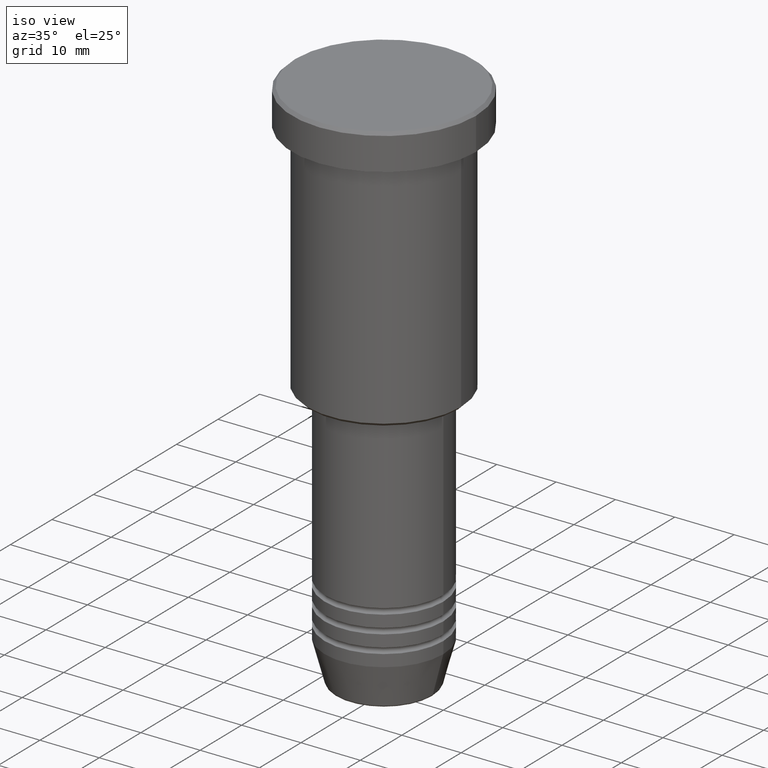
[diagram: clean part render]
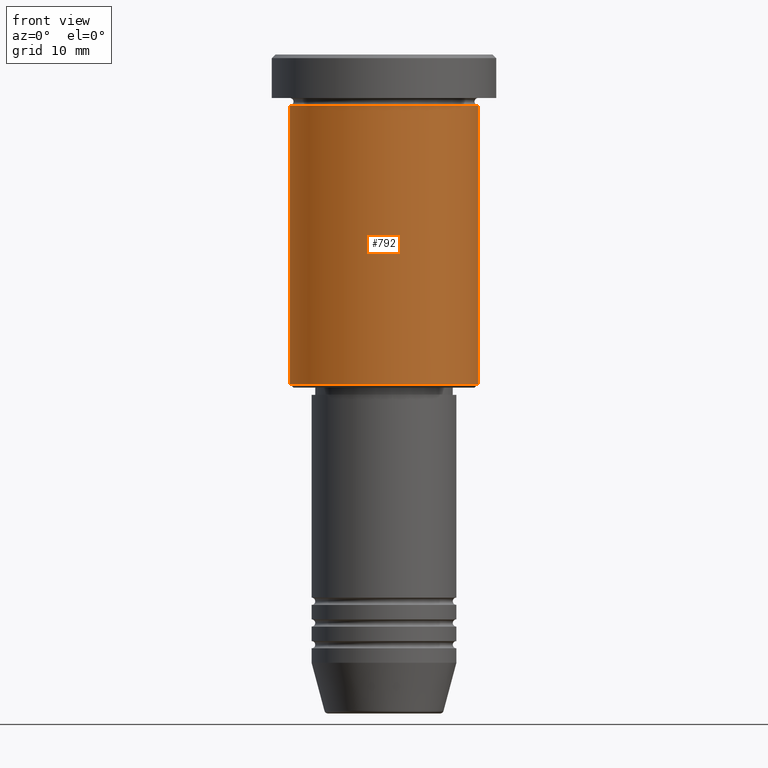
[diagram: tour spotlight — one face highlighted and labeled with its STEP entity id]
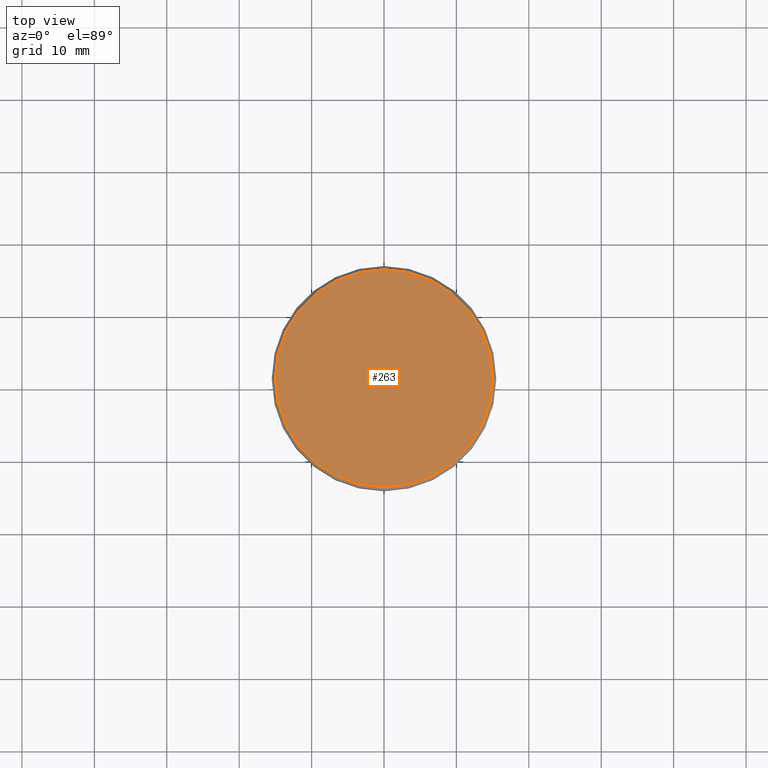
[diagram: tour spotlight — one face highlighted and labeled with its STEP entity id]
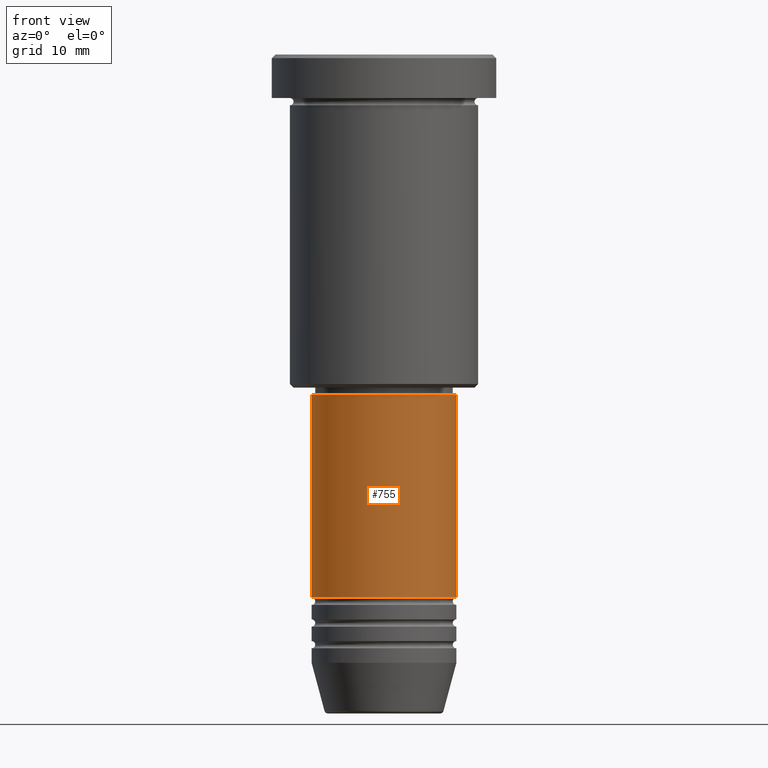
[diagram: tour spotlight — one face highlighted and labeled with its STEP entity id]
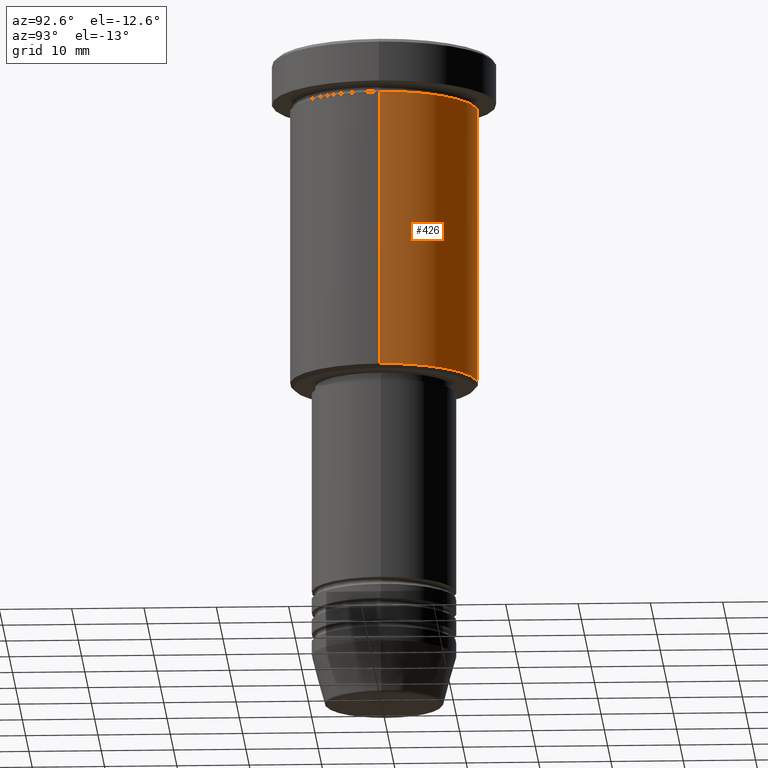
[diagram: tour spotlight — one face highlighted and labeled with its STEP entity id]
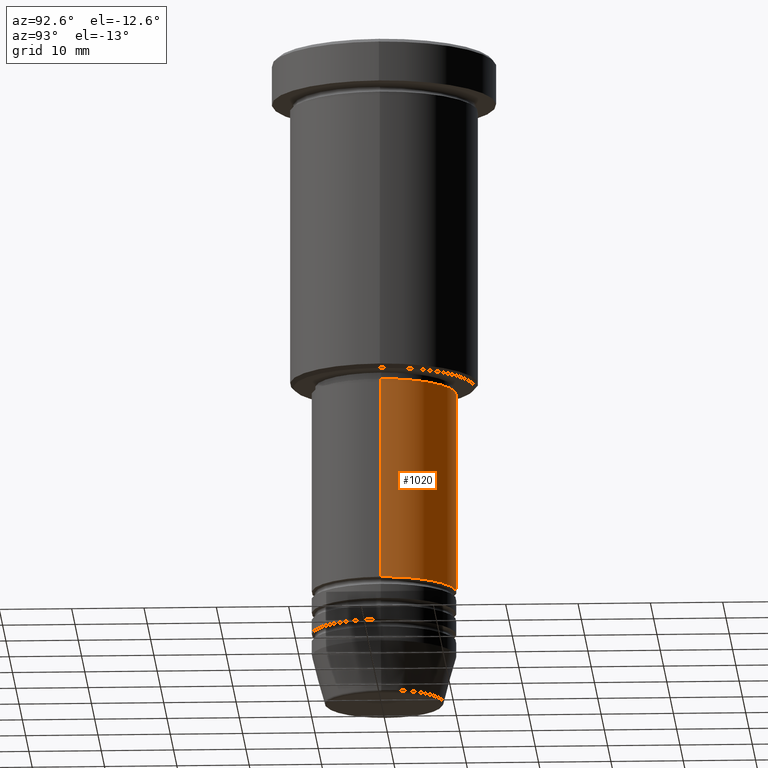
[diagram: tour spotlight — one face highlighted and labeled with its STEP entity id]
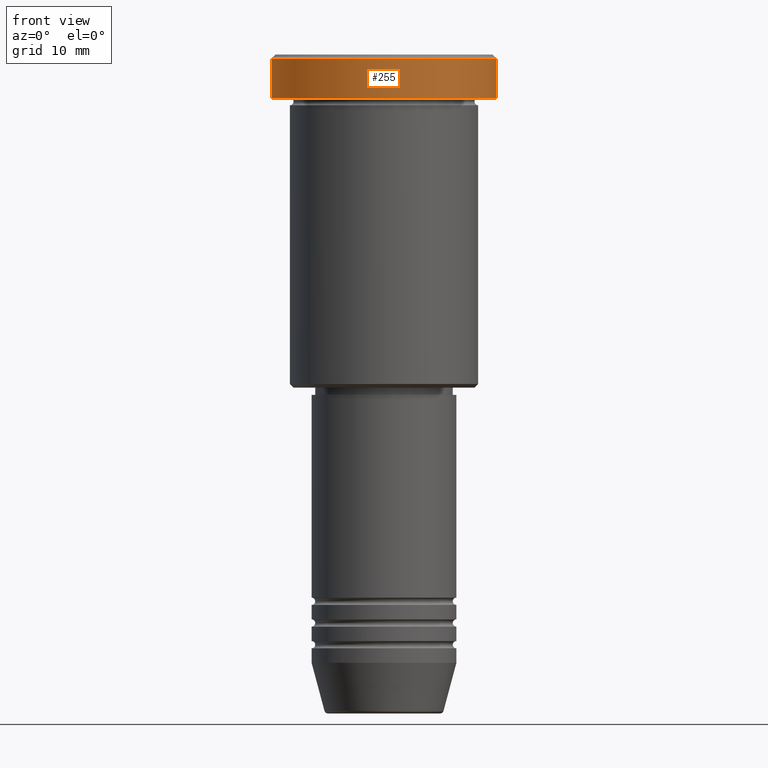
[diagram: tour spotlight — one face highlighted and labeled with its STEP entity id]
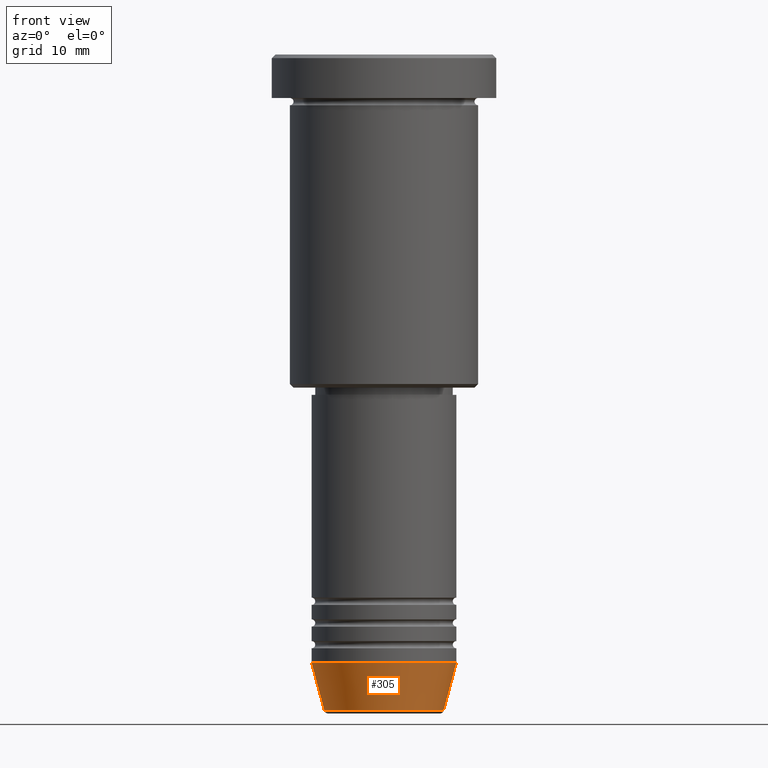
[diagram: tour spotlight — one face highlighted and labeled with its STEP entity id]
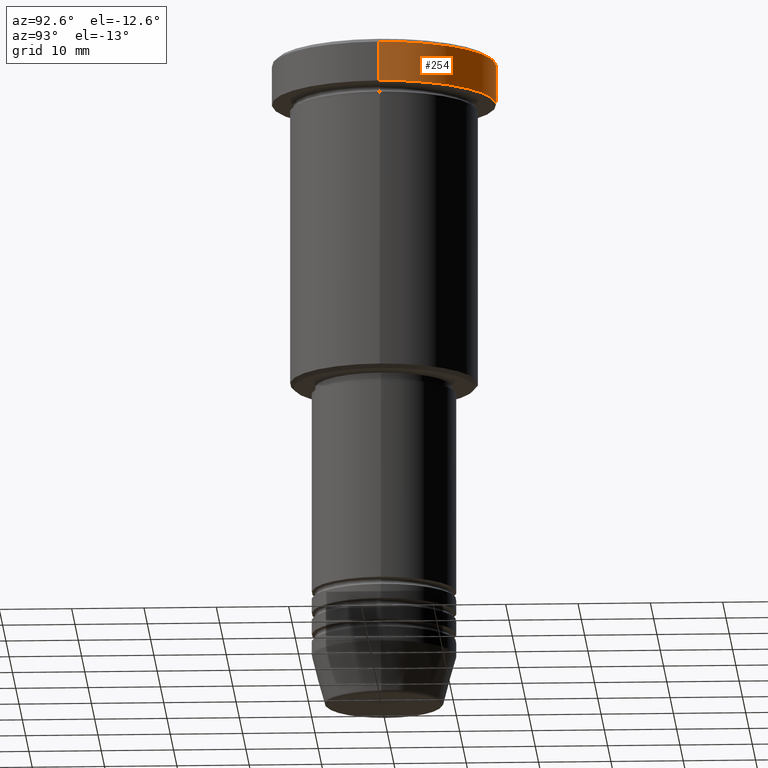
[diagram: tour spotlight — one face highlighted and labeled with its STEP entity id]
A machine part: a face-by-face anatomy tour. The part has 43 B-rep faces; the first image is the clean iso view, then the 8 largest visible faces are spotlighted one at a time (largest first), each with its STEP entity span.

Face 1 — front view, entity #792. In plain terms, the highlighted cylindrical surface (partial cylindrical patch) has radius 13 mm, axis along (-0, -0, 1).
Definition (entity closure, byte-faithful):
#53 = DIRECTION ( 'NONE',  ( -1.000000000000000000, 0.000000000000000000, 0.000000000000000000 ) ) ;
#108 = CARTESIAN_POINT ( 'NONE',  ( 13.00000000000000000, 0.000000000000000000, -6.999999999999995559 ) ) ;
#141 = CARTESIAN_POINT ( 'NONE',  ( -13.00000000000000000, 1.592040838891559095E-15, -6.999999999999995559 ) ) ;
#152 = DIRECTION ( 'NONE',  ( -0.000000000000000000, -0.000000000000000000, 1.000000000000000000 ) ) ;
#218 = DIRECTION ( 'NONE',  ( -0.000000000000000000, -0.000000000000000000, 1.000000000000000000 ) ) ;
#220 = ORIENTED_EDGE ( 'NONE', *, *, #1006, .F. ) ;
#224 = FACE_OUTER_BOUND ( 'NONE', #330, .T. ) ;
#227 = VERTEX_POINT ( 'NONE', #141 ) ;
#284 = LINE ( 'NONE', #650, #390 ) ;
#315 = CARTESIAN_POINT ( 'NONE',  ( 0.000000000000000000, 0.000000000000000000, -45.49999999999998579 ) ) ;
#324 = ORIENTED_EDGE ( 'NONE', *, *, #756, .T. ) ;
#330 = EDGE_LOOP ( 'NONE', ( #791, #324, #1011, #220 ) ) ;
#345 = LINE ( 'NONE', #710, #861 ) ;
#370 = EDGE_CURVE ( 'NONE', #1150, #227, #345, .T. ) ;
#374 = DIRECTION ( 'NONE',  ( -0.000000000000000000, -0.000000000000000000, 1.000000000000000000 ) ) ;
#387 = CIRCLE ( 'NONE', #1057, 13.00000000000000000 ) ;
#390 = VECTOR ( 'NONE', #1004, 1000.000000000000000 ) ;
#419 = DIRECTION ( 'NONE',  ( -0.000000000000000000, -0.000000000000000000, 1.000000000000000000 ) ) ;
#485 = DIRECTION ( 'NONE',  ( 1.000000000000000000, 0.000000000000000000, 0.000000000000000000 ) ) ;
#568 = VERTEX_POINT ( 'NONE', #705 ) ;
#593 = CARTESIAN_POINT ( 'NONE',  ( 0.000000000000000000, 0.000000000000000000, 0.000000000000000000 ) ) ;
#609 = CARTESIAN_POINT ( 'NONE',  ( -13.00000000000000000, 1.592040838891559095E-15, -45.49999999999998579 ) ) ;
#629 = DIRECTION ( 'NONE',  ( 1.000000000000000000, 0.000000000000000000, 0.000000000000000000 ) ) ;
#650 = CARTESIAN_POINT ( 'NONE',  ( 13.00000000000000000, 0.000000000000000000, 0.000000000000000000 ) ) ;
#705 = CARTESIAN_POINT ( 'NONE',  ( 13.00000000000000000, 0.000000000000000000, -45.49999999999998579 ) ) ;
#710 = CARTESIAN_POINT ( 'NONE',  ( -13.00000000000000000, 1.592040838891559095E-15, 0.000000000000000000 ) ) ;
#722 = EDGE_CURVE ( 'NONE', #568, #853, #284, .T. ) ;
#756 = EDGE_CURVE ( 'NONE', #1150, #568, #1096, .T. ) ;
#791 = ORIENTED_EDGE ( 'NONE', *, *, #370, .F. ) ;
#792 = ADVANCED_FACE ( 'NONE', ( #224 ), #865, .T. ) ;
#807 = AXIS2_PLACEMENT_3D ( 'NONE', #315, #218, #53 ) ;
#818 = AXIS2_PLACEMENT_3D ( 'NONE', #593, #419, #485 ) ;
#853 = VERTEX_POINT ( 'NONE', #108 ) ;
#861 = VECTOR ( 'NONE', #152, 1000.000000000000000 ) ;
#865 = CYLINDRICAL_SURFACE ( 'NONE', #818, 13.00000000000000000 ) ;
#1004 = DIRECTION ( 'NONE',  ( -0.000000000000000000, -0.000000000000000000, 1.000000000000000000 ) ) ;
#1006 = EDGE_CURVE ( 'NONE', #227, #853, #387, .T. ) ;
#1011 = ORIENTED_EDGE ( 'NONE', *, *, #722, .T. ) ;
#1057 = AXIS2_PLACEMENT_3D ( 'NONE', #1090, #374, #629 ) ;
#1090 = CARTESIAN_POINT ( 'NONE',  ( 0.000000000000000000, 0.000000000000000000, -6.999999999999995559 ) ) ;
#1096 = CIRCLE ( 'NONE', #807, 13.00000000000000000 ) ;
#1150 = VERTEX_POINT ( 'NONE', #609 ) ;

Face 2 — top view, entity #263. In plain terms, the highlighted planar face has unit normal (0, -0, 1).
Definition (entity closure, byte-faithful):
#23 = CARTESIAN_POINT ( 'NONE',  ( 0.000000000000000000, 0.000000000000000000, 0.000000000000000000 ) ) ;
#31 = AXIS2_PLACEMENT_3D ( 'NONE', #23, #1013, #192 ) ;
#87 = AXIS2_PLACEMENT_3D ( 'NONE', #403, #506, #316 ) ;
#192 = DIRECTION ( 'NONE',  ( 1.000000000000000000, 0.000000000000000000, 0.000000000000000000 ) ) ;
#261 = PLANE ( 'NONE',  #437 ) ;
#263 = ADVANCED_FACE ( 'NONE', ( #697 ), #261, .T. ) ;
#316 = DIRECTION ( 'NONE',  ( 1.000000000000000000, 0.000000000000000000, 0.000000000000000000 ) ) ;
#326 = CIRCLE ( 'NONE', #31, 15.00000000000000000 ) ;
#332 = CARTESIAN_POINT ( 'NONE',  ( -15.00000000000000000, 0.000000000000000000, 0.000000000000000000 ) ) ;
#403 = CARTESIAN_POINT ( 'NONE',  ( 0.000000000000000000, 0.000000000000000000, 0.000000000000000000 ) ) ;
#437 = AXIS2_PLACEMENT_3D ( 'NONE', #544, #977, #1162 ) ;
#458 = ORIENTED_EDGE ( 'NONE', *, *, #476, .T. ) ;
#476 = EDGE_CURVE ( 'NONE', #780, #934, #326, .T. ) ;
#493 = ORIENTED_EDGE ( 'NONE', *, *, #521, .T. ) ;
#506 = DIRECTION ( 'NONE',  ( -0.000000000000000000, -0.000000000000000000, 1.000000000000000000 ) ) ;
#521 = EDGE_CURVE ( 'NONE', #934, #780, #937, .T. ) ;
#544 = CARTESIAN_POINT ( 'NONE',  ( 0.000000000000000000, 0.000000000000000000, 0.000000000000000000 ) ) ;
#697 = FACE_OUTER_BOUND ( 'NONE', #1017, .T. ) ;
#780 = VERTEX_POINT ( 'NONE', #1056 ) ;
#934 = VERTEX_POINT ( 'NONE', #332 ) ;
#937 = CIRCLE ( 'NONE', #87, 15.00000000000000000 ) ;
#977 = DIRECTION ( 'NONE',  ( 0.000000000000000000, -0.000000000000000000, 1.000000000000000000 ) ) ;
#1013 = DIRECTION ( 'NONE',  ( -0.000000000000000000, -0.000000000000000000, 1.000000000000000000 ) ) ;
#1017 = EDGE_LOOP ( 'NONE', ( #493, #458 ) ) ;
#1056 = CARTESIAN_POINT ( 'NONE',  ( 15.00000000000000000, 1.867586368699713376E-15, 0.000000000000000000 ) ) ;
#1162 = DIRECTION ( 'NONE',  ( 1.000000000000000000, 0.000000000000000000, 0.000000000000000000 ) ) ;

Face 3 — front view, entity #755. In plain terms, the highlighted cylindrical surface (partial cylindrical patch) has radius 10 mm, axis along (-0, -0, 1).
Definition (entity closure, byte-faithful):
#4 = CARTESIAN_POINT ( 'NONE',  ( 10.00000000000000000, 0.000000000000000000, -46.99999999999997158 ) ) ;
#11 = DIRECTION ( 'NONE',  ( -0.000000000000000000, -0.000000000000000000, 1.000000000000000000 ) ) ;
#64 = CARTESIAN_POINT ( 'NONE',  ( 10.00000000000000000, 0.000000000000000000, -74.99999999999997158 ) ) ;
#169 = EDGE_LOOP ( 'NONE', ( #1180, #703, #654, #585 ) ) ;
#171 = DIRECTION ( 'NONE',  ( 1.000000000000000000, 0.000000000000000000, 0.000000000000000000 ) ) ;
#187 = DIRECTION ( 'NONE',  ( 1.000000000000000000, 0.000000000000000000, 0.000000000000000000 ) ) ;
#216 = CIRCLE ( 'NONE', #1019, 10.00000000000000000 ) ;
#241 = DIRECTION ( 'NONE',  ( -0.000000000000000000, -0.000000000000000000, 1.000000000000000000 ) ) ;
#265 = CARTESIAN_POINT ( 'NONE',  ( -10.00000000000000000, 1.224646799147353256E-15, -46.99999999999997158 ) ) ;
#312 = EDGE_CURVE ( 'NONE', #1043, #432, #707, .T. ) ;
#386 = CARTESIAN_POINT ( 'NONE',  ( 0.000000000000000000, 0.000000000000000000, 0.000000000000000000 ) ) ;
#414 = EDGE_CURVE ( 'NONE', #695, #1043, #938, .T. ) ;
#432 = VERTEX_POINT ( 'NONE', #4 ) ;
#456 = DIRECTION ( 'NONE',  ( -0.000000000000000000, -0.000000000000000000, 1.000000000000000000 ) ) ;
#462 = EDGE_CURVE ( 'NONE', #1026, #432, #216, .T. ) ;
#480 = CYLINDRICAL_SURFACE ( 'NONE', #693, 10.00000000000000000 ) ;
#576 = VECTOR ( 'NONE', #241, 1000.000000000000000 ) ;
#585 = ORIENTED_EDGE ( 'NONE', *, *, #462, .F. ) ;
#654 = ORIENTED_EDGE ( 'NONE', *, *, #312, .T. ) ;
#658 = FACE_OUTER_BOUND ( 'NONE', #169, .T. ) ;
#693 = AXIS2_PLACEMENT_3D ( 'NONE', #386, #1125, #767 ) ;
#695 = VERTEX_POINT ( 'NONE', #1067 ) ;
#703 = ORIENTED_EDGE ( 'NONE', *, *, #414, .T. ) ;
#707 = LINE ( 'NONE', #876, #750 ) ;
#750 = VECTOR ( 'NONE', #1074, 1000.000000000000000 ) ;
#755 = ADVANCED_FACE ( 'NONE', ( #658 ), #480, .T. ) ;
#766 = EDGE_CURVE ( 'NONE', #695, #1026, #1140, .T. ) ;
#767 = DIRECTION ( 'NONE',  ( 1.000000000000000000, 0.000000000000000000, 0.000000000000000000 ) ) ;
#774 = CARTESIAN_POINT ( 'NONE',  ( -10.00000000000000000, 1.224646799147353256E-15, 0.000000000000000000 ) ) ;
#833 = CARTESIAN_POINT ( 'NONE',  ( 0.000000000000000000, 0.000000000000000000, -46.99999999999997158 ) ) ;
#876 = CARTESIAN_POINT ( 'NONE',  ( 10.00000000000000000, 0.000000000000000000, 0.000000000000000000 ) ) ;
#938 = CIRCLE ( 'NONE', #1161, 10.00000000000000000 ) ;
#1019 = AXIS2_PLACEMENT_3D ( 'NONE', #833, #456, #171 ) ;
#1026 = VERTEX_POINT ( 'NONE', #265 ) ;
#1043 = VERTEX_POINT ( 'NONE', #64 ) ;
#1060 = CARTESIAN_POINT ( 'NONE',  ( 0.000000000000000000, 0.000000000000000000, -74.99999999999997158 ) ) ;
#1067 = CARTESIAN_POINT ( 'NONE',  ( -10.00000000000000000, 1.224646799147353256E-15, -74.99999999999997158 ) ) ;
#1074 = DIRECTION ( 'NONE',  ( -0.000000000000000000, -0.000000000000000000, 1.000000000000000000 ) ) ;
#1125 = DIRECTION ( 'NONE',  ( -0.000000000000000000, -0.000000000000000000, 1.000000000000000000 ) ) ;
#1140 = LINE ( 'NONE', #774, #576 ) ;
#1161 = AXIS2_PLACEMENT_3D ( 'NONE', #1060, #11, #187 ) ;
#1180 = ORIENTED_EDGE ( 'NONE', *, *, #766, .F. ) ;

Face 4 — auxiliary view, entity #426. In plain terms, the highlighted cylindrical surface (partial cylindrical patch) has radius 13 mm, axis along (-0, -0, 1).
Definition (entity closure, byte-faithful):
#3 = DIRECTION ( 'NONE',  ( -1.000000000000000000, 0.000000000000000000, 0.000000000000000000 ) ) ;
#18 = CARTESIAN_POINT ( 'NONE',  ( 0.000000000000000000, 0.000000000000000000, -45.49999999999998579 ) ) ;
#21 = ORIENTED_EDGE ( 'NONE', *, *, #722, .F. ) ;
#73 = EDGE_LOOP ( 'NONE', ( #418, #757, #107, #21 ) ) ;
#99 = CIRCLE ( 'NONE', #842, 13.00000000000000000 ) ;
#107 = ORIENTED_EDGE ( 'NONE', *, *, #798, .F. ) ;
#108 = CARTESIAN_POINT ( 'NONE',  ( 13.00000000000000000, 0.000000000000000000, -6.999999999999995559 ) ) ;
#141 = CARTESIAN_POINT ( 'NONE',  ( -13.00000000000000000, 1.592040838891559095E-15, -6.999999999999995559 ) ) ;
#152 = DIRECTION ( 'NONE',  ( -0.000000000000000000, -0.000000000000000000, 1.000000000000000000 ) ) ;
#227 = VERTEX_POINT ( 'NONE', #141 ) ;
#280 = AXIS2_PLACEMENT_3D ( 'NONE', #914, #556, #903 ) ;
#284 = LINE ( 'NONE', #650, #390 ) ;
#298 = AXIS2_PLACEMENT_3D ( 'NONE', #1151, #334, #844 ) ;
#334 = DIRECTION ( 'NONE',  ( -0.000000000000000000, -0.000000000000000000, 1.000000000000000000 ) ) ;
#345 = LINE ( 'NONE', #710, #861 ) ;
#370 = EDGE_CURVE ( 'NONE', #1150, #227, #345, .T. ) ;
#377 = DIRECTION ( 'NONE',  ( -0.000000000000000000, -0.000000000000000000, 1.000000000000000000 ) ) ;
#390 = VECTOR ( 'NONE', #1004, 1000.000000000000000 ) ;
#418 = ORIENTED_EDGE ( 'NONE', *, *, #870, .T. ) ;
#426 = ADVANCED_FACE ( 'NONE', ( #896 ), #558, .T. ) ;
#556 = DIRECTION ( 'NONE',  ( -0.000000000000000000, -0.000000000000000000, 1.000000000000000000 ) ) ;
#558 = CYLINDRICAL_SURFACE ( 'NONE', #280, 13.00000000000000000 ) ;
#568 = VERTEX_POINT ( 'NONE', #705 ) ;
#609 = CARTESIAN_POINT ( 'NONE',  ( -13.00000000000000000, 1.592040838891559095E-15, -45.49999999999998579 ) ) ;
#650 = CARTESIAN_POINT ( 'NONE',  ( 13.00000000000000000, 0.000000000000000000, 0.000000000000000000 ) ) ;
#705 = CARTESIAN_POINT ( 'NONE',  ( 13.00000000000000000, 0.000000000000000000, -45.49999999999998579 ) ) ;
#710 = CARTESIAN_POINT ( 'NONE',  ( -13.00000000000000000, 1.592040838891559095E-15, 0.000000000000000000 ) ) ;
#722 = EDGE_CURVE ( 'NONE', #568, #853, #284, .T. ) ;
#757 = ORIENTED_EDGE ( 'NONE', *, *, #370, .T. ) ;
#798 = EDGE_CURVE ( 'NONE', #853, #227, #881, .T. ) ;
#842 = AXIS2_PLACEMENT_3D ( 'NONE', #18, #377, #3 ) ;
#844 = DIRECTION ( 'NONE',  ( 1.000000000000000000, 0.000000000000000000, 0.000000000000000000 ) ) ;
#853 = VERTEX_POINT ( 'NONE', #108 ) ;
#861 = VECTOR ( 'NONE', #152, 1000.000000000000000 ) ;
#870 = EDGE_CURVE ( 'NONE', #568, #1150, #99, .T. ) ;
#881 = CIRCLE ( 'NONE', #298, 13.00000000000000000 ) ;
#896 = FACE_OUTER_BOUND ( 'NONE', #73, .T. ) ;
#903 = DIRECTION ( 'NONE',  ( 1.000000000000000000, 0.000000000000000000, 0.000000000000000000 ) ) ;
#914 = CARTESIAN_POINT ( 'NONE',  ( 0.000000000000000000, 0.000000000000000000, 0.000000000000000000 ) ) ;
#1004 = DIRECTION ( 'NONE',  ( -0.000000000000000000, -0.000000000000000000, 1.000000000000000000 ) ) ;
#1150 = VERTEX_POINT ( 'NONE', #609 ) ;
#1151 = CARTESIAN_POINT ( 'NONE',  ( 0.000000000000000000, 0.000000000000000000, -6.999999999999995559 ) ) ;

Face 5 — auxiliary view, entity #1020. In plain terms, the highlighted cylindrical surface (partial cylindrical patch) has radius 10 mm, axis along (-0, -0, 1).
Definition (entity closure, byte-faithful):
#4 = CARTESIAN_POINT ( 'NONE',  ( 10.00000000000000000, 0.000000000000000000, -46.99999999999997158 ) ) ;
#64 = CARTESIAN_POINT ( 'NONE',  ( 10.00000000000000000, 0.000000000000000000, -74.99999999999997158 ) ) ;
#86 = CIRCLE ( 'NONE', #973, 10.00000000000000000 ) ;
#190 = EDGE_LOOP ( 'NONE', ( #588, #508, #598, #608 ) ) ;
#212 = EDGE_CURVE ( 'NONE', #432, #1026, #619, .T. ) ;
#241 = DIRECTION ( 'NONE',  ( -0.000000000000000000, -0.000000000000000000, 1.000000000000000000 ) ) ;
#265 = CARTESIAN_POINT ( 'NONE',  ( -10.00000000000000000, 1.224646799147353256E-15, -46.99999999999997158 ) ) ;
#294 = CARTESIAN_POINT ( 'NONE',  ( 0.000000000000000000, 0.000000000000000000, -74.99999999999997158 ) ) ;
#312 = EDGE_CURVE ( 'NONE', #1043, #432, #707, .T. ) ;
#382 = CYLINDRICAL_SURFACE ( 'NONE', #562, 10.00000000000000000 ) ;
#411 = AXIS2_PLACEMENT_3D ( 'NONE', #939, #1126, #1050 ) ;
#432 = VERTEX_POINT ( 'NONE', #4 ) ;
#508 = ORIENTED_EDGE ( 'NONE', *, *, #766, .T. ) ;
#562 = AXIS2_PLACEMENT_3D ( 'NONE', #743, #811, #1086 ) ;
#576 = VECTOR ( 'NONE', #241, 1000.000000000000000 ) ;
#588 = ORIENTED_EDGE ( 'NONE', *, *, #950, .T. ) ;
#598 = ORIENTED_EDGE ( 'NONE', *, *, #212, .F. ) ;
#608 = ORIENTED_EDGE ( 'NONE', *, *, #312, .F. ) ;
#619 = CIRCLE ( 'NONE', #411, 10.00000000000000000 ) ;
#647 = FACE_OUTER_BOUND ( 'NONE', #190, .T. ) ;
#695 = VERTEX_POINT ( 'NONE', #1067 ) ;
#707 = LINE ( 'NONE', #876, #750 ) ;
#743 = CARTESIAN_POINT ( 'NONE',  ( 0.000000000000000000, 0.000000000000000000, 0.000000000000000000 ) ) ;
#750 = VECTOR ( 'NONE', #1074, 1000.000000000000000 ) ;
#766 = EDGE_CURVE ( 'NONE', #695, #1026, #1140, .T. ) ;
#774 = CARTESIAN_POINT ( 'NONE',  ( -10.00000000000000000, 1.224646799147353256E-15, 0.000000000000000000 ) ) ;
#811 = DIRECTION ( 'NONE',  ( -0.000000000000000000, -0.000000000000000000, 1.000000000000000000 ) ) ;
#876 = CARTESIAN_POINT ( 'NONE',  ( 10.00000000000000000, 0.000000000000000000, 0.000000000000000000 ) ) ;
#939 = CARTESIAN_POINT ( 'NONE',  ( 0.000000000000000000, 0.000000000000000000, -46.99999999999997158 ) ) ;
#950 = EDGE_CURVE ( 'NONE', #1043, #695, #86, .T. ) ;
#973 = AXIS2_PLACEMENT_3D ( 'NONE', #294, #1016, #1183 ) ;
#1016 = DIRECTION ( 'NONE',  ( -0.000000000000000000, -0.000000000000000000, 1.000000000000000000 ) ) ;
#1020 = ADVANCED_FACE ( 'NONE', ( #647 ), #382, .T. ) ;
#1026 = VERTEX_POINT ( 'NONE', #265 ) ;
#1043 = VERTEX_POINT ( 'NONE', #64 ) ;
#1050 = DIRECTION ( 'NONE',  ( 1.000000000000000000, 0.000000000000000000, 0.000000000000000000 ) ) ;
#1067 = CARTESIAN_POINT ( 'NONE',  ( -10.00000000000000000, 1.224646799147353256E-15, -74.99999999999997158 ) ) ;
#1074 = DIRECTION ( 'NONE',  ( -0.000000000000000000, -0.000000000000000000, 1.000000000000000000 ) ) ;
#1086 = DIRECTION ( 'NONE',  ( 1.000000000000000000, 0.000000000000000000, 0.000000000000000000 ) ) ;
#1126 = DIRECTION ( 'NONE',  ( -0.000000000000000000, -0.000000000000000000, 1.000000000000000000 ) ) ;
#1140 = LINE ( 'NONE', #774, #576 ) ;
#1183 = DIRECTION ( 'NONE',  ( 1.000000000000000000, 0.000000000000000000, 0.000000000000000000 ) ) ;

Face 6 — front view, entity #255. In plain terms, the highlighted cylindrical surface (partial cylindrical patch) has radius 15.5 mm, axis along (-0, -0, 1).
Definition (entity closure, byte-faithful):
#62 = EDGE_LOOP ( 'NONE', ( #1062, #350, #1149, #271 ) ) ;
#95 = EDGE_CURVE ( 'NONE', #375, #117, #247, .T. ) ;
#117 = VERTEX_POINT ( 'NONE', #819 ) ;
#126 = VECTOR ( 'NONE', #799, 1000.000000000000000 ) ;
#140 = VERTEX_POINT ( 'NONE', #1028 ) ;
#210 = CARTESIAN_POINT ( 'NONE',  ( -15.50000000000000000, 1.898202538678397557E-15, 0.000000000000000000 ) ) ;
#222 = CYLINDRICAL_SURFACE ( 'NONE', #790, 15.50000000000000000 ) ;
#232 = CARTESIAN_POINT ( 'NONE',  ( -15.50000000000000000, 1.898202538678397557E-15, -5.999999999999995559 ) ) ;
#247 = CIRCLE ( 'NONE', #303, 15.50000000000000000 ) ;
#253 = DIRECTION ( 'NONE',  ( -0.000000000000000000, -0.000000000000000000, 1.000000000000000000 ) ) ;
#255 = ADVANCED_FACE ( 'NONE', ( #1134 ), #222, .T. ) ;
#257 = DIRECTION ( 'NONE',  ( 0.000000000000000000, 0.000000000000000000, -1.000000000000000000 ) ) ;
#271 = ORIENTED_EDGE ( 'NONE', *, *, #95, .T. ) ;
#275 = EDGE_CURVE ( 'NONE', #674, #140, #1080, .T. ) ;
#303 = AXIS2_PLACEMENT_3D ( 'NONE', #1108, #257, #980 ) ;
#317 = LINE ( 'NONE', #405, #126 ) ;
#350 = ORIENTED_EDGE ( 'NONE', *, *, #275, .T. ) ;
#375 = VERTEX_POINT ( 'NONE', #520 ) ;
#405 = CARTESIAN_POINT ( 'NONE',  ( 15.50000000000000000, 0.000000000000000000, 0.000000000000000000 ) ) ;
#520 = CARTESIAN_POINT ( 'NONE',  ( 15.50000000000000000, 0.000000000000000000, -0.4999999999999987232 ) ) ;
#582 = AXIS2_PLACEMENT_3D ( 'NONE', #1170, #253, #785 ) ;
#591 = CARTESIAN_POINT ( 'NONE',  ( 0.000000000000000000, 0.000000000000000000, 0.000000000000000000 ) ) ;
#674 = VERTEX_POINT ( 'NONE', #232 ) ;
#687 = EDGE_CURVE ( 'NONE', #674, #117, #964, .T. ) ;
#691 = EDGE_CURVE ( 'NONE', #140, #375, #317, .T. ) ;
#785 = DIRECTION ( 'NONE',  ( 1.000000000000000000, 0.000000000000000000, 0.000000000000000000 ) ) ;
#790 = AXIS2_PLACEMENT_3D ( 'NONE', #591, #942, #854 ) ;
#799 = DIRECTION ( 'NONE',  ( -0.000000000000000000, -0.000000000000000000, 1.000000000000000000 ) ) ;
#819 = CARTESIAN_POINT ( 'NONE',  ( -15.50000000000000000, 1.898202538678397557E-15, -0.4999999999999987232 ) ) ;
#854 = DIRECTION ( 'NONE',  ( 1.000000000000000000, 0.000000000000000000, 0.000000000000000000 ) ) ;
#942 = DIRECTION ( 'NONE',  ( -0.000000000000000000, -0.000000000000000000, 1.000000000000000000 ) ) ;
#953 = DIRECTION ( 'NONE',  ( -0.000000000000000000, -0.000000000000000000, 1.000000000000000000 ) ) ;
#964 = LINE ( 'NONE', #210, #1102 ) ;
#980 = DIRECTION ( 'NONE',  ( 1.000000000000000000, 0.000000000000000000, 0.000000000000000000 ) ) ;
#1028 = CARTESIAN_POINT ( 'NONE',  ( 15.50000000000000000, 0.000000000000000000, -5.999999999999995559 ) ) ;
#1062 = ORIENTED_EDGE ( 'NONE', *, *, #687, .F. ) ;
#1080 = CIRCLE ( 'NONE', #582, 15.50000000000000000 ) ;
#1102 = VECTOR ( 'NONE', #953, 1000.000000000000000 ) ;
#1108 = CARTESIAN_POINT ( 'NONE',  ( 0.000000000000000000, 0.000000000000000000, -0.4999999999999987232 ) ) ;
#1134 = FACE_OUTER_BOUND ( 'NONE', #62, .T. ) ;
#1149 = ORIENTED_EDGE ( 'NONE', *, *, #691, .T. ) ;
#1170 = CARTESIAN_POINT ( 'NONE',  ( 0.000000000000000000, 0.000000000000000000, -5.999999999999995559 ) ) ;

Face 7 — front view, entity #305. In plain terms, the highlighted conical surface has half-angle 15 deg.
Definition (entity closure, byte-faithful):
#72 = AXIS2_PLACEMENT_3D ( 'NONE', #599, #607, #1046 ) ;
#77 = VERTEX_POINT ( 'NONE', #299 ) ;
#168 = DIRECTION ( 'NONE',  ( -0.000000000000000000, -0.000000000000000000, 1.000000000000000000 ) ) ;
#209 = DIRECTION ( 'NONE',  ( 0.2588190451025213501, 0.000000000000000000, 0.9659258262890680902 ) ) ;
#248 = FACE_OUTER_BOUND ( 'NONE', #614, .T. ) ;
#291 = DIRECTION ( 'NONE',  ( -0.000000000000000000, -0.000000000000000000, 1.000000000000000000 ) ) ;
#299 = CARTESIAN_POINT ( 'NONE',  ( -10.00000000000000000, 1.224646799147353256E-15, -83.99999999999998579 ) ) ;
#305 = ADVANCED_FACE ( 'NONE', ( #248 ), #622, .T. ) ;
#311 = LINE ( 'NONE', #569, #1038 ) ;
#367 = VERTEX_POINT ( 'NONE', #1163 ) ;
#372 = CIRCLE ( 'NONE', #72, 10.00000000000000000 ) ;
#431 = CIRCLE ( 'NONE', #975, 8.223655072137187716 ) ;
#522 = ORIENTED_EDGE ( 'NONE', *, *, #778, .F. ) ;
#536 = CARTESIAN_POINT ( 'NONE',  ( 0.000000000000000000, 0.000000000000000000, -83.99999999999998579 ) ) ;
#552 = EDGE_CURVE ( 'NONE', #1048, #367, #311, .T. ) ;
#565 = AXIS2_PLACEMENT_3D ( 'NONE', #536, #168, #888 ) ;
#569 = CARTESIAN_POINT ( 'NONE',  ( 10.00000000000000000, 0.000000000000000000, -83.99999999999998579 ) ) ;
#599 = CARTESIAN_POINT ( 'NONE',  ( 0.000000000000000000, 0.000000000000000000, -83.99999999999998579 ) ) ;
#603 = DIRECTION ( 'NONE',  ( -0.2588190451025213501, 3.169619151431772337E-17, 0.9659258262890680902 ) ) ;
#607 = DIRECTION ( 'NONE',  ( -0.000000000000000000, -0.000000000000000000, 1.000000000000000000 ) ) ;
#610 = ORIENTED_EDGE ( 'NONE', *, *, #868, .T. ) ;
#614 = EDGE_LOOP ( 'NONE', ( #765, #610, #899, #522 ) ) ;
#622 = CONICAL_SURFACE ( 'NONE', #565, 10.00000000000000000, 0.2617993877991500740 ) ;
#765 = ORIENTED_EDGE ( 'NONE', *, *, #1148, .F. ) ;
#778 = EDGE_CURVE ( 'NONE', #77, #367, #372, .T. ) ;
#813 = CARTESIAN_POINT ( 'NONE',  ( 0.000000000000000000, 0.000000000000000000, -90.62940952255125637 ) ) ;
#822 = VECTOR ( 'NONE', #603, 1000.000000000000000 ) ;
#862 = CARTESIAN_POINT ( 'NONE',  ( -10.00000000000000000, 1.224646799147353256E-15, -83.99999999999998579 ) ) ;
#868 = EDGE_CURVE ( 'NONE', #1039, #1048, #431, .T. ) ;
#888 = DIRECTION ( 'NONE',  ( 1.000000000000000000, 0.000000000000000000, 0.000000000000000000 ) ) ;
#899 = ORIENTED_EDGE ( 'NONE', *, *, #552, .T. ) ;
#949 = CARTESIAN_POINT ( 'NONE',  ( 8.223655072137187716, 0.000000000000000000, -90.62940952255125637 ) ) ;
#975 = AXIS2_PLACEMENT_3D ( 'NONE', #813, #291, #1012 ) ;
#988 = CARTESIAN_POINT ( 'NONE',  ( -8.223655072137187716, 1.115877042642911856E-15, -90.62940952255125637 ) ) ;
#1012 = DIRECTION ( 'NONE',  ( 1.000000000000000000, 0.000000000000000000, 0.000000000000000000 ) ) ;
#1038 = VECTOR ( 'NONE', #209, 1000.000000000000000 ) ;
#1039 = VERTEX_POINT ( 'NONE', #988 ) ;
#1046 = DIRECTION ( 'NONE',  ( 1.000000000000000000, 0.000000000000000000, 0.000000000000000000 ) ) ;
#1048 = VERTEX_POINT ( 'NONE', #949 ) ;
#1132 = LINE ( 'NONE', #862, #822 ) ;
#1148 = EDGE_CURVE ( 'NONE', #1039, #77, #1132, .T. ) ;
#1163 = CARTESIAN_POINT ( 'NONE',  ( 10.00000000000000000, 0.000000000000000000, -83.99999999999998579 ) ) ;

Face 8 — auxiliary view, entity #254. In plain terms, the highlighted cylindrical surface (partial cylindrical patch) has radius 15.5 mm, axis along (-0, -0, 1).
Definition (entity closure, byte-faithful):
#20 = DIRECTION ( 'NONE',  ( 1.000000000000000000, 0.000000000000000000, 0.000000000000000000 ) ) ;
#37 = EDGE_CURVE ( 'NONE', #117, #375, #979, .T. ) ;
#46 = DIRECTION ( 'NONE',  ( -0.000000000000000000, -0.000000000000000000, 1.000000000000000000 ) ) ;
#63 = ORIENTED_EDGE ( 'NONE', *, *, #655, .T. ) ;
#93 = ORIENTED_EDGE ( 'NONE', *, *, #691, .F. ) ;
#101 = ORIENTED_EDGE ( 'NONE', *, *, #687, .T. ) ;
#117 = VERTEX_POINT ( 'NONE', #819 ) ;
#122 = DIRECTION ( 'NONE',  ( 1.000000000000000000, 0.000000000000000000, 0.000000000000000000 ) ) ;
#126 = VECTOR ( 'NONE', #799, 1000.000000000000000 ) ;
#140 = VERTEX_POINT ( 'NONE', #1028 ) ;
#194 = CARTESIAN_POINT ( 'NONE',  ( 0.000000000000000000, 0.000000000000000000, -0.4999999999999987232 ) ) ;
#210 = CARTESIAN_POINT ( 'NONE',  ( -15.50000000000000000, 1.898202538678397557E-15, 0.000000000000000000 ) ) ;
#214 = FACE_OUTER_BOUND ( 'NONE', #424, .T. ) ;
#232 = CARTESIAN_POINT ( 'NONE',  ( -15.50000000000000000, 1.898202538678397557E-15, -5.999999999999995559 ) ) ;
#254 = ADVANCED_FACE ( 'NONE', ( #214 ), #496, .T. ) ;
#317 = LINE ( 'NONE', #405, #126 ) ;
#341 = AXIS2_PLACEMENT_3D ( 'NONE', #848, #46, #400 ) ;
#375 = VERTEX_POINT ( 'NONE', #520 ) ;
#400 = DIRECTION ( 'NONE',  ( 1.000000000000000000, 0.000000000000000000, 0.000000000000000000 ) ) ;
#405 = CARTESIAN_POINT ( 'NONE',  ( 15.50000000000000000, 0.000000000000000000, 0.000000000000000000 ) ) ;
#424 = EDGE_LOOP ( 'NONE', ( #63, #101, #882, #93 ) ) ;
#496 = CYLINDRICAL_SURFACE ( 'NONE', #341, 15.50000000000000000 ) ;
#520 = CARTESIAN_POINT ( 'NONE',  ( 15.50000000000000000, 0.000000000000000000, -0.4999999999999987232 ) ) ;
#605 = CIRCLE ( 'NONE', #635, 15.50000000000000000 ) ;
#635 = AXIS2_PLACEMENT_3D ( 'NONE', #933, #764, #122 ) ;
#655 = EDGE_CURVE ( 'NONE', #140, #674, #605, .T. ) ;
#674 = VERTEX_POINT ( 'NONE', #232 ) ;
#687 = EDGE_CURVE ( 'NONE', #674, #117, #964, .T. ) ;
#691 = EDGE_CURVE ( 'NONE', #140, #375, #317, .T. ) ;
#754 = AXIS2_PLACEMENT_3D ( 'NONE', #194, #1172, #20 ) ;
#764 = DIRECTION ( 'NONE',  ( -0.000000000000000000, -0.000000000000000000, 1.000000000000000000 ) ) ;
#799 = DIRECTION ( 'NONE',  ( -0.000000000000000000, -0.000000000000000000, 1.000000000000000000 ) ) ;
#819 = CARTESIAN_POINT ( 'NONE',  ( -15.50000000000000000, 1.898202538678397557E-15, -0.4999999999999987232 ) ) ;
#848 = CARTESIAN_POINT ( 'NONE',  ( 0.000000000000000000, 0.000000000000000000, 0.000000000000000000 ) ) ;
#882 = ORIENTED_EDGE ( 'NONE', *, *, #37, .T. ) ;
#933 = CARTESIAN_POINT ( 'NONE',  ( 0.000000000000000000, 0.000000000000000000, -5.999999999999995559 ) ) ;
#953 = DIRECTION ( 'NONE',  ( -0.000000000000000000, -0.000000000000000000, 1.000000000000000000 ) ) ;
#964 = LINE ( 'NONE', #210, #1102 ) ;
#979 = CIRCLE ( 'NONE', #754, 15.50000000000000000 ) ;
#1028 = CARTESIAN_POINT ( 'NONE',  ( 15.50000000000000000, 0.000000000000000000, -5.999999999999995559 ) ) ;
#1102 = VECTOR ( 'NONE', #953, 1000.000000000000000 ) ;
#1172 = DIRECTION ( 'NONE',  ( 0.000000000000000000, 0.000000000000000000, -1.000000000000000000 ) ) ;